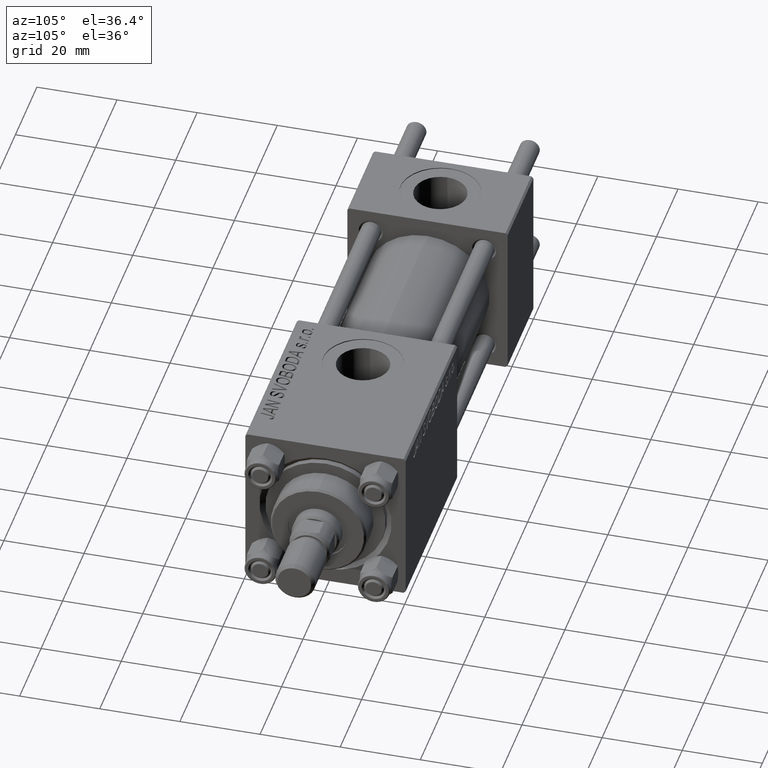
[diagram: clean part render]
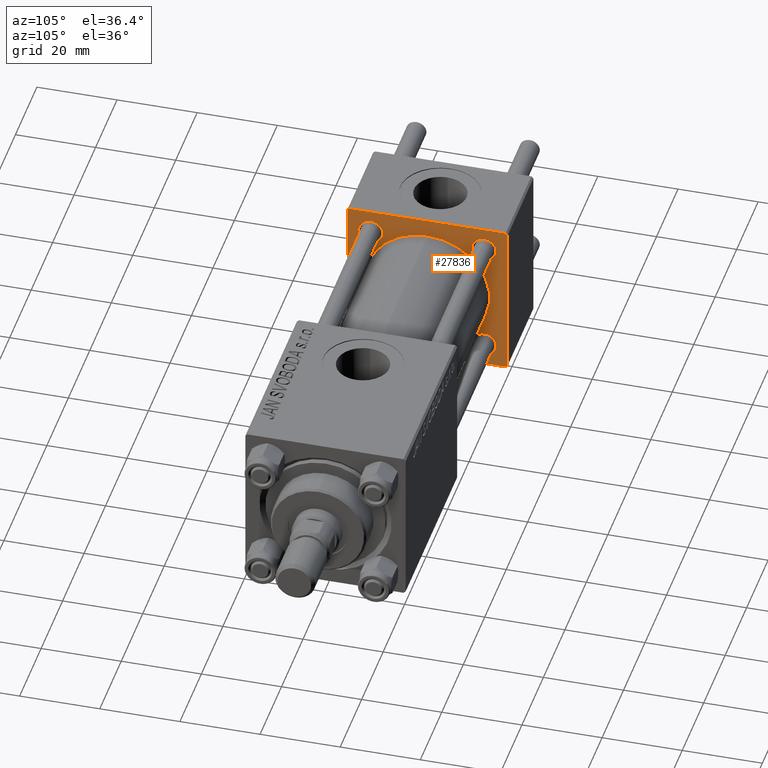
[diagram: same view with one face highlighted and labeled with its STEP entity id]
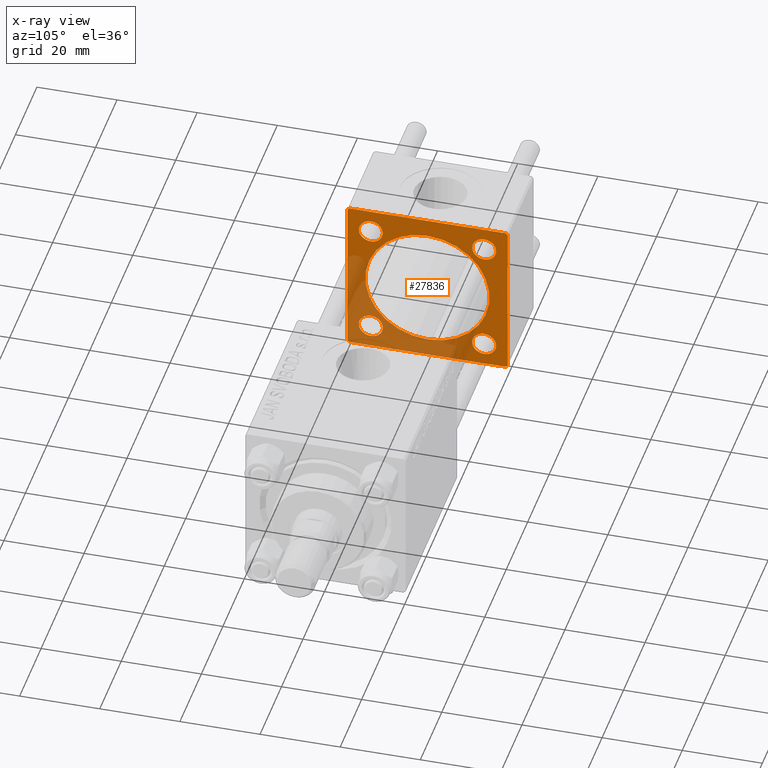
[diagram: x-ray of the same camera — body ghosted, the highlighted face saturated]
A machine part, auxiliary view. The second image highlights one B-rep face of the part: STEP entity #27836.
The next image is the same camera in x-ray: the body ghosted, the highlighted face saturated — about 37% of this face is hidden behind the body in this view.
In plain terms, the highlighted planar face has unit normal (-1, 0, 0).
Its self-contained STEP definition (entity closure, byte-faithful):
#541 = ORIENTED_EDGE ( 'NONE', *, *, #34842, .T. ) ;
#795 = CARTESIAN_POINT ( 'NONE',  ( 24.00000000000000000, 0.000000000000000000, 15.50000000000000000 ) ) ;
#993 = AXIS2_PLACEMENT_3D ( 'NONE', #35297, #20297, #39360 ) ;
#1004 = EDGE_CURVE ( 'NONE', #10169, #47835, #9864, .T. ) ;
#1581 = CARTESIAN_POINT ( 'NONE',  ( 24.00000000000000000, 20.00000000000000000, 19.49999999999999289 ) ) ;
#2607 = EDGE_CURVE ( 'NONE', #48295, #33412, #24450, .T. ) ;
#2820 = EDGE_LOOP ( 'NONE', ( #39693, #12186 ) ) ;
#2900 = CIRCLE ( 'NONE', #32913, 15.50000000000000000 ) ;
#2910 = PLANE ( 'NONE',  #46474 ) ;
#3064 = ORIENTED_EDGE ( 'NONE', *, *, #3568, .T. ) ;
#3377 = CARTESIAN_POINT ( 'NONE',  ( 24.00000000000000000, 20.00000000000000000, -20.00000000000000711 ) ) ;
#3405 = CARTESIAN_POINT ( 'NONE',  ( 24.00000000000000000, 20.00000000000000000, 20.00000000000000000 ) ) ;
#3568 = EDGE_CURVE ( 'NONE', #31483, #41976, #49676, .T. ) ;
#3759 = EDGE_CURVE ( 'NONE', #38713, #15715, #18759, .T. ) ;
#3821 = CIRCLE ( 'NONE', #19242, 3.000000000000000888 ) ;
#4161 = EDGE_CURVE ( 'NONE', #22308, #38713, #33198, .T. ) ;
#4310 = VERTEX_POINT ( 'NONE', #27063 ) ;
#4435 = ORIENTED_EDGE ( 'NONE', *, *, #11840, .T. ) ;
#5473 = CIRCLE ( 'NONE', #26588, 2.999999999999976463 ) ;
#5760 = ORIENTED_EDGE ( 'NONE', *, *, #4161, .T. ) ;
#6103 = CARTESIAN_POINT ( 'NONE',  ( 24.00000000000000000, -20.00000000000000355, 19.99999999999998934 ) ) ;
#6281 = CARTESIAN_POINT ( 'NONE',  ( 24.00000000000000000, 19.50000000000000000, 20.00000000000000000 ) ) ;
#6511 = DIRECTION ( 'NONE',  ( 0.000000000000000000, 0.000000000000000000, 1.000000000000000000 ) ) ;
#6718 = CARTESIAN_POINT ( 'NONE',  ( 24.00000000000000000, 0.000000000000000000, 0.000000000000000000 ) ) ;
#6915 = AXIS2_PLACEMENT_3D ( 'NONE', #42706, #27474, #31282 ) ;
#7315 = DIRECTION ( 'NONE',  ( 0.000000000000000000, -1.000000000000000000, -2.602085213965210149E-16 ) ) ;
#7318 = CARTESIAN_POINT ( 'NONE',  ( 24.00000000000000000, -14.14999999999999503, -11.15000000000000391 ) ) ;
#8388 = DIRECTION ( 'NONE',  ( -1.000000000000000000, -0.000000000000000000, -0.000000000000000000 ) ) ;
#8545 = DIRECTION ( 'NONE',  ( 0.000000000000000000, 0.000000000000000000, 1.000000000000000000 ) ) ;
#8716 = AXIS2_PLACEMENT_3D ( 'NONE', #31651, #16411, #15922 ) ;
#9006 = FACE_BOUND ( 'NONE', #2820, .T. ) ;
#9294 = DIRECTION ( 'NONE',  ( 0.000000000000000000, 0.000000000000000000, 1.000000000000000000 ) ) ;
#9864 = CIRCLE ( 'NONE', #43893, 2.999999999999976463 ) ;
#10016 = CARTESIAN_POINT ( 'NONE',  ( 24.00000000000000000, 14.14999999999999858, -14.15000000000000036 ) ) ;
#10169 = VERTEX_POINT ( 'NONE', #35196 ) ;
#10225 = CARTESIAN_POINT ( 'NONE',  ( 24.00000000000000000, -14.14999999999999503, 17.15000000000000568 ) ) ;
#10310 = DIRECTION ( 'NONE',  ( 0.000000000000000000, 0.000000000000000000, -1.000000000000000000 ) ) ;
#10781 = DIRECTION ( 'NONE',  ( -1.000000000000000000, 0.000000000000000000, -0.000000000000000000 ) ) ;
#10923 = CARTESIAN_POINT ( 'NONE',  ( 24.00000000000000000, -20.00000000000000355, 19.49999999999998224 ) ) ;
#11613 = CARTESIAN_POINT ( 'NONE',  ( 24.00000000000000000, 20.00000000000000000, -19.50000000000002132 ) ) ;
#11840 = EDGE_CURVE ( 'NONE', #46893, #14197, #24841, .T. ) ;
#12186 = ORIENTED_EDGE ( 'NONE', *, *, #44018, .T. ) ;
#12216 = CARTESIAN_POINT ( 'NONE',  ( 24.00000000000000000, -14.14999999999999503, -14.15000000000000391 ) ) ;
#12313 = EDGE_CURVE ( 'NONE', #22308, #14197, #37732, .T. ) ;
#12370 = EDGE_LOOP ( 'NONE', ( #17232, #46462 ) ) ;
#13493 = CARTESIAN_POINT ( 'NONE',  ( 24.00000000000000000, -20.00000000000000355, 19.49999999999998224 ) ) ;
#13897 = DIRECTION ( 'NONE',  ( 0.000000000000000000, -0.7071067811865425767, 0.7071067811865525687 ) ) ;
#13971 = LINE ( 'NONE', #6103, #29491 ) ;
#14197 = VERTEX_POINT ( 'NONE', #11613 ) ;
#14358 = DIRECTION ( 'NONE',  ( -0.000000000000000000, 0.000000000000000000, 1.000000000000000000 ) ) ;
#14674 = VERTEX_POINT ( 'NONE', #47442 ) ;
#14740 = DIRECTION ( 'NONE',  ( -1.000000000000000000, -0.000000000000000000, -0.000000000000000000 ) ) ;
#14797 = VERTEX_POINT ( 'NONE', #10923 ) ;
#15406 = EDGE_CURVE ( 'NONE', #41976, #31483, #44226, .T. ) ;
#15545 = AXIS2_PLACEMENT_3D ( 'NONE', #39900, #16809, #43973 ) ;
#15715 = VERTEX_POINT ( 'NONE', #22849 ) ;
#15922 = DIRECTION ( 'NONE',  ( 0.000000000000000000, 0.000000000000000000, 1.000000000000000000 ) ) ;
#16220 = EDGE_CURVE ( 'NONE', #33412, #48295, #2900, .T. ) ;
#16411 = DIRECTION ( 'NONE',  ( -1.000000000000000000, -0.000000000000000000, -0.000000000000000000 ) ) ;
#16731 = EDGE_LOOP ( 'NONE', ( #42219, #48922 ) ) ;
#16809 = DIRECTION ( 'NONE',  ( 1.000000000000000000, 0.000000000000000000, 0.000000000000000000 ) ) ;
#17232 = ORIENTED_EDGE ( 'NONE', *, *, #45975, .T. ) ;
#17366 = CARTESIAN_POINT ( 'NONE',  ( 24.00000000000000000, 19.50000000000000711, -20.00000000000000711 ) ) ;
#18606 = ORIENTED_EDGE ( 'NONE', *, *, #32508, .T. ) ;
#18759 = LINE ( 'NONE', #41630, #21268 ) ;
#19242 = AXIS2_PLACEMENT_3D ( 'NONE', #12216, #8388, #23897 ) ;
#19294 = CARTESIAN_POINT ( 'NONE',  ( 24.00000000000000000, -14.14999999999999503, 11.15000000000000391 ) ) ;
#20289 = DIRECTION ( 'NONE',  ( -1.000000000000000000, -0.000000000000000000, -0.000000000000000000 ) ) ;
#20297 = DIRECTION ( 'NONE',  ( -1.000000000000000000, -0.000000000000000000, -0.000000000000000000 ) ) ;
#20777 = VERTEX_POINT ( 'NONE', #21252 ) ;
#21252 = CARTESIAN_POINT ( 'NONE',  ( 24.00000000000000000, -14.14999999999999503, -17.15000000000000568 ) ) ;
#21268 = VECTOR ( 'NONE', #7315, 1000.000000000000000 ) ;
#21535 = DIRECTION ( 'NONE',  ( -0.000000000000000000, 0.7071067811865524577, 0.7071067811865426878 ) ) ;
#21895 = LINE ( 'NONE', #29269, #49691 ) ;
#22308 = VERTEX_POINT ( 'NONE', #1581 ) ;
#22488 = ORIENTED_EDGE ( 'NONE', *, *, #3759, .T. ) ;
#22748 = CARTESIAN_POINT ( 'NONE',  ( 24.00000000000000000, 14.14999999999999858, -17.14999999999997726 ) ) ;
#22849 = CARTESIAN_POINT ( 'NONE',  ( 24.00000000000000000, -19.49999999999999289, 19.99999999999998934 ) ) ;
#23242 = CIRCLE ( 'NONE', #24031, 2.999999999999976463 ) ;
#23897 = DIRECTION ( 'NONE',  ( 0.000000000000000000, 0.000000000000000000, 1.000000000000000000 ) ) ;
#24031 = AXIS2_PLACEMENT_3D ( 'NONE', #34034, #14740, #37860 ) ;
#24450 = CIRCLE ( 'NONE', #15545, 15.50000000000000000 ) ;
#24503 = FACE_BOUND ( 'NONE', #50086, .T. ) ;
#24788 = DIRECTION ( 'NONE',  ( -1.000000000000000000, -0.000000000000000000, -0.000000000000000000 ) ) ;
#24841 = LINE ( 'NONE', #25352, #48974 ) ;
#25007 = VERTEX_POINT ( 'NONE', #22748 ) ;
#25106 = ORIENTED_EDGE ( 'NONE', *, *, #2607, .F. ) ;
#25352 = CARTESIAN_POINT ( 'NONE',  ( 24.00000000000000000, 20.00000000000000000, -19.50000000000002132 ) ) ;
#25869 = ORIENTED_EDGE ( 'NONE', *, *, #16220, .F. ) ;
#26048 = EDGE_LOOP ( 'NONE', ( #25106, #25869 ) ) ;
#26588 = AXIS2_PLACEMENT_3D ( 'NONE', #10016, #39543, #8545 ) ;
#26785 = VERTEX_POINT ( 'NONE', #7318 ) ;
#27063 = CARTESIAN_POINT ( 'NONE',  ( 24.00000000000000000, -20.00000000000000000, -19.49999999999999645 ) ) ;
#27064 = EDGE_LOOP ( 'NONE', ( #45053, #4435, #36831, #5760, #22488, #541, #18606, #48601 ) ) ;
#27341 = EDGE_CURVE ( 'NONE', #4310, #28025, #21895, .T. ) ;
#27474 = DIRECTION ( 'NONE',  ( -1.000000000000000000, -0.000000000000000000, -0.000000000000000000 ) ) ;
#27836 = ADVANCED_FACE ( 'NONE', ( #28068, #9006, #24503, #39988, #43561, #41520 ), #2910, .F. ) ;
#28025 = VERTEX_POINT ( 'NONE', #31318 ) ;
#28068 = FACE_BOUND ( 'NONE', #12370, .T. ) ;
#28438 = CARTESIAN_POINT ( 'NONE',  ( 24.00000000000000000, 19.50000000000000000, 20.00000000000000000 ) ) ;
#28568 = ORIENTED_EDGE ( 'NONE', *, *, #15406, .T. ) ;
#28990 = DIRECTION ( 'NONE',  ( -0.000000000000000000, -0.7071067811865500152, -0.7071067811865451302 ) ) ;
#29269 = CARTESIAN_POINT ( 'NONE',  ( 24.00000000000000000, -19.50000000000000711, -20.00000000000000000 ) ) ;
#29491 = VECTOR ( 'NONE', #36837, 1000.000000000000000 ) ;
#30642 = CIRCLE ( 'NONE', #8716, 3.000000000000000888 ) ;
#31282 = DIRECTION ( 'NONE',  ( 0.000000000000000000, 0.000000000000000000, 1.000000000000000000 ) ) ;
#31318 = CARTESIAN_POINT ( 'NONE',  ( 24.00000000000000000, -19.50000000000000711, -20.00000000000000000 ) ) ;
#31483 = VERTEX_POINT ( 'NONE', #10225 ) ;
#31651 = CARTESIAN_POINT ( 'NONE',  ( 24.00000000000000000, -14.14999999999999503, -14.15000000000000391 ) ) ;
#31990 = DIRECTION ( 'NONE',  ( 0.000000000000000000, 0.000000000000000000, 1.000000000000000000 ) ) ;
#32409 = CARTESIAN_POINT ( 'NONE',  ( 24.00000000000000000, 14.14999999999999858, -14.15000000000000036 ) ) ;
#32508 = EDGE_CURVE ( 'NONE', #14797, #4310, #13971, .T. ) ;
#32913 = AXIS2_PLACEMENT_3D ( 'NONE', #41314, #38006, #6511 ) ;
#33198 = LINE ( 'NONE', #6281, #42397 ) ;
#33412 = VERTEX_POINT ( 'NONE', #44465 ) ;
#33829 = AXIS2_PLACEMENT_3D ( 'NONE', #32409, #24788, #9294 ) ;
#34034 = CARTESIAN_POINT ( 'NONE',  ( 24.00000000000000000, 14.14999999999999858, 14.15000000000000036 ) ) ;
#34842 = EDGE_CURVE ( 'NONE', #15715, #14797, #36088, .T. ) ;
#35196 = CARTESIAN_POINT ( 'NONE',  ( 24.00000000000000000, 14.14999999999999858, 17.14999999999997726 ) ) ;
#35286 = CARTESIAN_POINT ( 'NONE',  ( 24.00000000000000000, 14.14999999999999858, 14.15000000000000036 ) ) ;
#35297 = CARTESIAN_POINT ( 'NONE',  ( 24.00000000000000000, -14.14999999999999503, 14.15000000000000391 ) ) ;
#36088 = LINE ( 'NONE', #13493, #49820 ) ;
#36831 = ORIENTED_EDGE ( 'NONE', *, *, #12313, .F. ) ;
#36837 = DIRECTION ( 'NONE',  ( 0.000000000000000000, 8.673617379884036705E-17, -1.000000000000000000 ) ) ;
#37732 = LINE ( 'NONE', #3405, #44918 ) ;
#37860 = DIRECTION ( 'NONE',  ( 0.000000000000000000, 0.000000000000000000, 1.000000000000000000 ) ) ;
#37954 = LINE ( 'NONE', #3377, #45089 ) ;
#38006 = DIRECTION ( 'NONE',  ( 1.000000000000000000, 0.000000000000000000, 0.000000000000000000 ) ) ;
#38252 = EDGE_CURVE ( 'NONE', #46893, #28025, #37954, .T. ) ;
#38713 = VERTEX_POINT ( 'NONE', #28438 ) ;
#39360 = DIRECTION ( 'NONE',  ( 0.000000000000000000, 0.000000000000000000, 1.000000000000000000 ) ) ;
#39543 = DIRECTION ( 'NONE',  ( -1.000000000000000000, -0.000000000000000000, -0.000000000000000000 ) ) ;
#39693 = ORIENTED_EDGE ( 'NONE', *, *, #42251, .T. ) ;
#39900 = CARTESIAN_POINT ( 'NONE',  ( 24.00000000000000000, 0.000000000000000000, 0.000000000000000000 ) ) ;
#39988 = FACE_BOUND ( 'NONE', #16731, .T. ) ;
#40886 = EDGE_CURVE ( 'NONE', #47835, #10169, #23242, .T. ) ;
#41314 = CARTESIAN_POINT ( 'NONE',  ( 24.00000000000000000, 0.000000000000000000, 0.000000000000000000 ) ) ;
#41520 = FACE_OUTER_BOUND ( 'NONE', #27064, .T. ) ;
#41630 = CARTESIAN_POINT ( 'NONE',  ( 24.00000000000000000, 20.00000000000000000, 20.00000000000000000 ) ) ;
#41976 = VERTEX_POINT ( 'NONE', #19294 ) ;
#42219 = ORIENTED_EDGE ( 'NONE', *, *, #40886, .T. ) ;
#42251 = EDGE_CURVE ( 'NONE', #25007, #14674, #5473, .T. ) ;
#42397 = VECTOR ( 'NONE', #13897, 999.9999999999998863 ) ;
#42706 = CARTESIAN_POINT ( 'NONE',  ( 24.00000000000000000, -14.14999999999999503, 14.15000000000000391 ) ) ;
#43561 = FACE_BOUND ( 'NONE', #26048, .T. ) ;
#43893 = AXIS2_PLACEMENT_3D ( 'NONE', #35286, #20289, #31990 ) ;
#43946 = EDGE_CURVE ( 'NONE', #26785, #20777, #30642, .T. ) ;
#43973 = DIRECTION ( 'NONE',  ( 0.000000000000000000, 0.000000000000000000, 1.000000000000000000 ) ) ;
#44018 = EDGE_CURVE ( 'NONE', #14674, #25007, #49328, .T. ) ;
#44226 = CIRCLE ( 'NONE', #6915, 3.000000000000000888 ) ;
#44465 = CARTESIAN_POINT ( 'NONE',  ( 24.00000000000000000, 1.898202538678397557E-15, -15.50000000000000000 ) ) ;
#44918 = VECTOR ( 'NONE', #10310, 1000.000000000000000 ) ;
#45053 = ORIENTED_EDGE ( 'NONE', *, *, #38252, .F. ) ;
#45089 = VECTOR ( 'NONE', #49623, 1000.000000000000000 ) ;
#45267 = DIRECTION ( 'NONE',  ( 0.000000000000000000, 0.7071067811865401342, -0.7071067811865549002 ) ) ;
#45975 = EDGE_CURVE ( 'NONE', #20777, #26785, #3821, .T. ) ;
#46462 = ORIENTED_EDGE ( 'NONE', *, *, #43946, .T. ) ;
#46474 = AXIS2_PLACEMENT_3D ( 'NONE', #6718, #10781, #14358 ) ;
#46893 = VERTEX_POINT ( 'NONE', #17366 ) ;
#47442 = CARTESIAN_POINT ( 'NONE',  ( 24.00000000000000000, 14.14999999999999858, -11.15000000000002700 ) ) ;
#47835 = VERTEX_POINT ( 'NONE', #49175 ) ;
#48295 = VERTEX_POINT ( 'NONE', #795 ) ;
#48601 = ORIENTED_EDGE ( 'NONE', *, *, #27341, .T. ) ;
#48922 = ORIENTED_EDGE ( 'NONE', *, *, #1004, .T. ) ;
#48974 = VECTOR ( 'NONE', #21535, 1000.000000000000000 ) ;
#49175 = CARTESIAN_POINT ( 'NONE',  ( 24.00000000000000000, 14.14999999999999858, 11.15000000000002700 ) ) ;
#49328 = CIRCLE ( 'NONE', #33829, 2.999999999999976463 ) ;
#49623 = DIRECTION ( 'NONE',  ( 0.000000000000000000, -1.000000000000000000, 1.734723475976807094E-16 ) ) ;
#49676 = CIRCLE ( 'NONE', #993, 3.000000000000000888 ) ;
#49691 = VECTOR ( 'NONE', #45267, 1000.000000000000000 ) ;
#49820 = VECTOR ( 'NONE', #28990, 1000.000000000000114 ) ;
#50086 = EDGE_LOOP ( 'NONE', ( #28568, #3064 ) ) ;